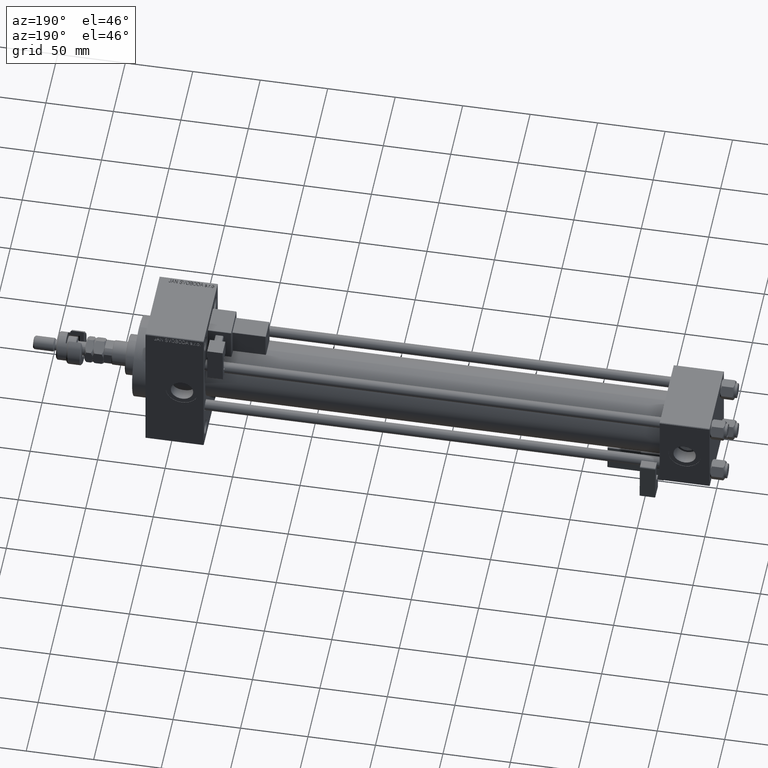
[diagram: clean part render]
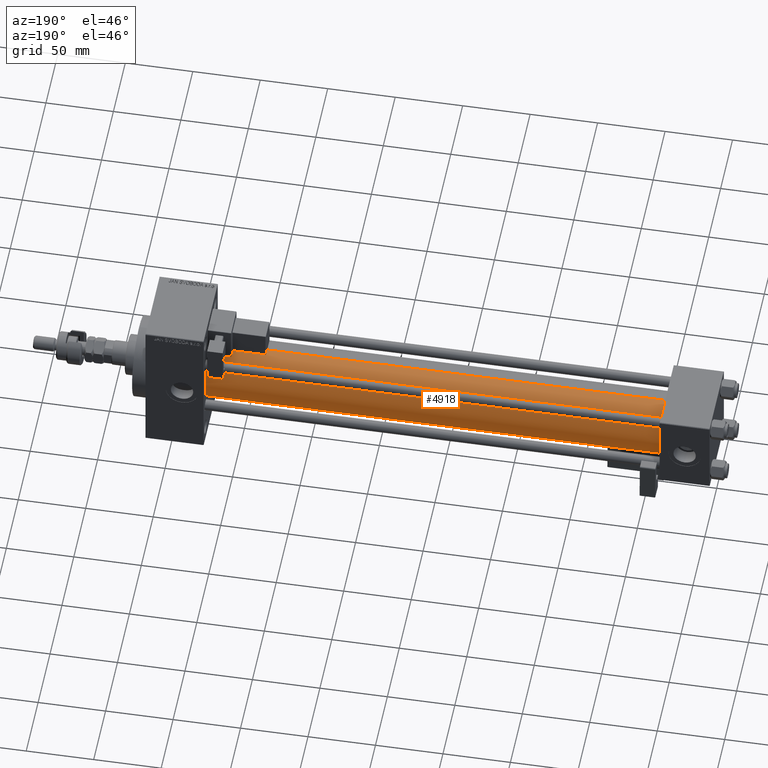
[diagram: same view with one face highlighted and labeled with its STEP entity id]
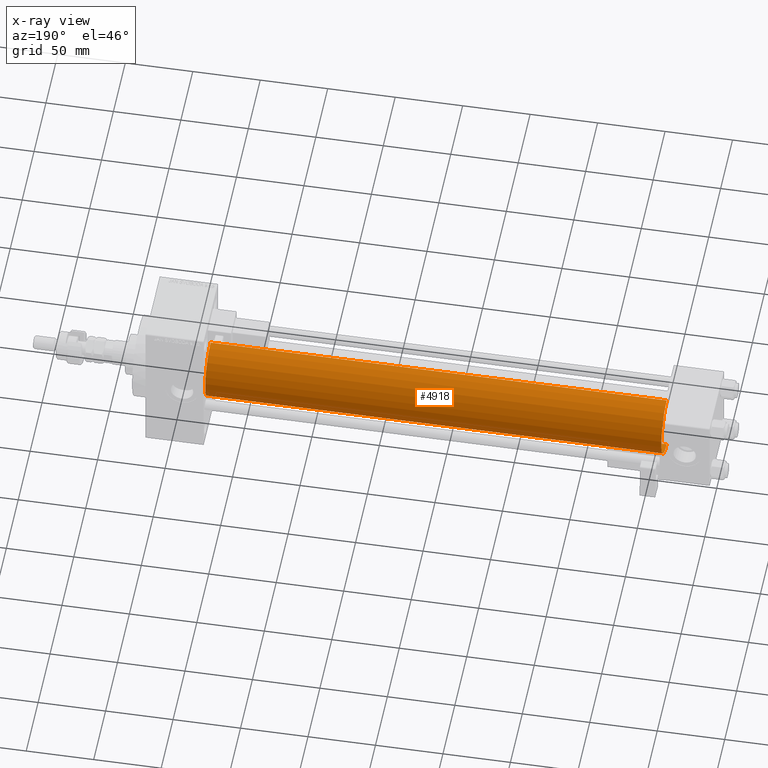
[diagram: x-ray of the same camera — body ghosted, the highlighted face saturated]
A machine part, auxiliary view. The second image highlights one B-rep face of the part: STEP entity #4918.
The next image is the same camera in x-ray: the body ghosted, the highlighted face saturated — about 0% of this face is hidden behind the body in this view.
In plain terms, the highlighted cylindrical surface (edge-blend (fillet) strip) has radius 23 mm, axis along (-1, -0, -0).
Its self-contained STEP definition (entity closure, byte-faithful):
#756 = DIRECTION ( 'NONE',  ( 0.000000000000000000, 0.000000000000000000, 1.000000000000000000 ) ) ;
#2575 = DIRECTION ( 'NONE',  ( -1.000000000000000000, -0.000000000000000000, -0.000000000000000000 ) ) ;
#3917 = AXIS2_PLACEMENT_3D ( 'NONE', #17528, #17793, #9286 ) ;
#4367 = ORIENTED_EDGE ( 'NONE', *, *, #27216, .T. ) ;
#4918 = ADVANCED_FACE ( 'NONE', ( #9014 ), #25761, .T. ) ;
#5159 = ORIENTED_EDGE ( 'NONE', *, *, #36514, .T. ) ;
#9014 = FACE_OUTER_BOUND ( 'NONE', #24449, .T. ) ;
#9286 = DIRECTION ( 'NONE',  ( 0.000000000000000000, 0.000000000000000000, 1.000000000000000000 ) ) ;
#9793 = VECTOR ( 'NONE', #39270, 1000.000000000000000 ) ;
#10197 = LINE ( 'NONE', #48062, #9793 ) ;
#13289 = AXIS2_PLACEMENT_3D ( 'NONE', #15052, #35601, #14503 ) ;
#13521 = CARTESIAN_POINT ( 'NONE',  ( 36.99999999999997868, 2.146024240737016609E-16, -23.00000000000000000 ) ) ;
#14503 = DIRECTION ( 'NONE',  ( 0.000000000000000000, 0.000000000000000000, -1.000000000000000000 ) ) ;
#15052 = CARTESIAN_POINT ( 'NONE',  ( 375.0000000000000000, -2.602085213965210642E-15, 0.000000000000000000 ) ) ;
#15927 = CIRCLE ( 'NONE', #13289, 23.00000000000000000 ) ;
#17528 = CARTESIAN_POINT ( 'NONE',  ( 36.99999999999997868, -2.602085213965210642E-15, 0.000000000000000000 ) ) ;
#17793 = DIRECTION ( 'NONE',  ( 1.000000000000000000, -0.000000000000000000, 0.000000000000000000 ) ) ;
#18783 = AXIS2_PLACEMENT_3D ( 'NONE', #46074, #42477, #756 ) ;
#22095 = VERTEX_POINT ( 'NONE', #50207 ) ;
#24449 = EDGE_LOOP ( 'NONE', ( #32069, #5159, #4367, #34044 ) ) ;
#25761 = CYLINDRICAL_SURFACE ( 'NONE', #18783, 23.00000000000000000 ) ;
#27216 = EDGE_CURVE ( 'NONE', #49140, #22095, #51375, .T. ) ;
#27424 = VERTEX_POINT ( 'NONE', #37413 ) ;
#30594 = VECTOR ( 'NONE', #2575, 1000.000000000000000 ) ;
#32069 = ORIENTED_EDGE ( 'NONE', *, *, #50975, .F. ) ;
#34044 = ORIENTED_EDGE ( 'NONE', *, *, #47857, .F. ) ;
#35440 = VERTEX_POINT ( 'NONE', #41912 ) ;
#35601 = DIRECTION ( 'NONE',  ( 1.000000000000000000, 0.000000000000000000, 0.000000000000000000 ) ) ;
#36514 = EDGE_CURVE ( 'NONE', #27424, #49140, #48409, .T. ) ;
#37413 = CARTESIAN_POINT ( 'NONE',  ( 375.0000000000000000, 2.146024240737016609E-16, -23.00000000000000000 ) ) ;
#39270 = DIRECTION ( 'NONE',  ( -1.000000000000000000, -0.000000000000000000, -0.000000000000000000 ) ) ;
#39890 = CARTESIAN_POINT ( 'NONE',  ( 375.0000000000000000, 2.146024240737016609E-16, -23.00000000000000000 ) ) ;
#41912 = CARTESIAN_POINT ( 'NONE',  ( 375.0000000000000000, -2.602085213965210642E-15, 23.00000000000000000 ) ) ;
#42477 = DIRECTION ( 'NONE',  ( -1.000000000000000000, -0.000000000000000000, -0.000000000000000000 ) ) ;
#46074 = CARTESIAN_POINT ( 'NONE',  ( 375.0000000000000000, -2.602085213965210642E-15, 0.000000000000000000 ) ) ;
#47857 = EDGE_CURVE ( 'NONE', #35440, #22095, #10197, .T. ) ;
#48062 = CARTESIAN_POINT ( 'NONE',  ( 375.0000000000000000, -2.602085213965210642E-15, 23.00000000000000000 ) ) ;
#48409 = LINE ( 'NONE', #39890, #30594 ) ;
#49140 = VERTEX_POINT ( 'NONE', #13521 ) ;
#50207 = CARTESIAN_POINT ( 'NONE',  ( 36.99999999999997868, -2.602085213965210642E-15, 23.00000000000000000 ) ) ;
#50975 = EDGE_CURVE ( 'NONE', #27424, #35440, #15927, .T. ) ;
#51375 = CIRCLE ( 'NONE', #3917, 23.00000000000000000 ) ;